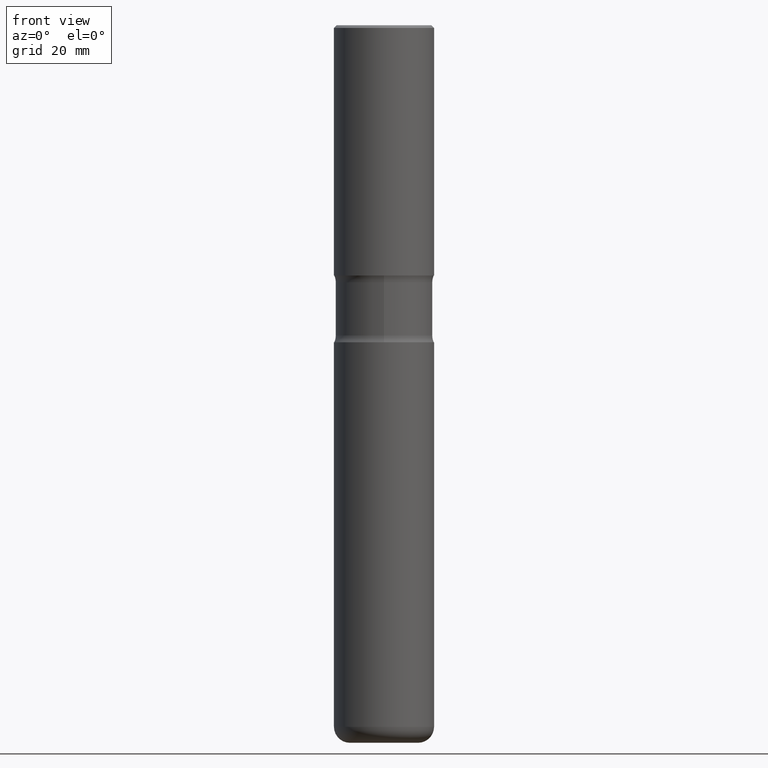
[diagram: clean part render]
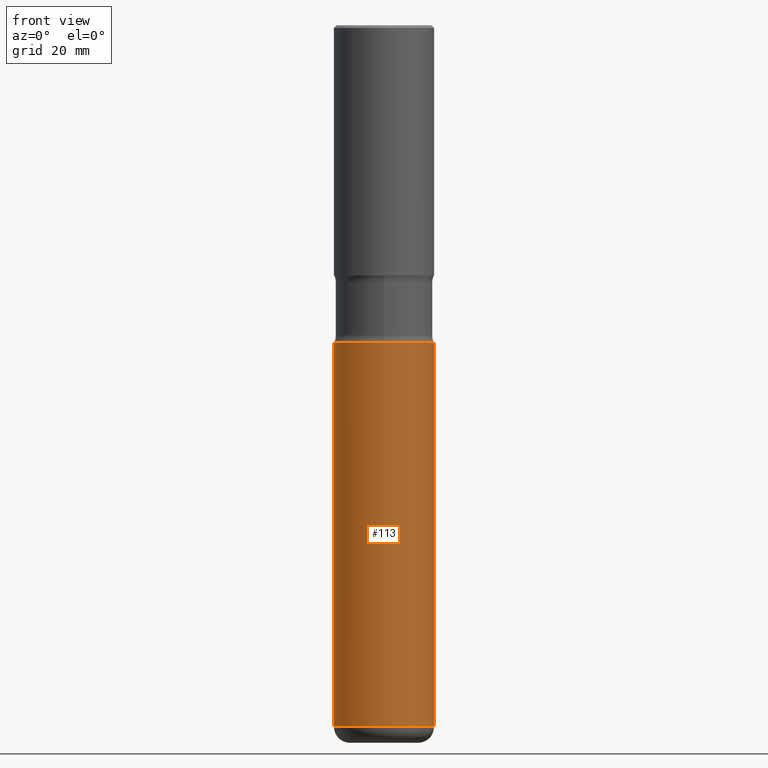
[diagram: same view with one face highlighted and labeled with its STEP entity id]
A machine part, front view. The second image highlights one B-rep face of the part: STEP entity #113.
In plain terms, the highlighted cylindrical surface (partial cylindrical patch) has radius 9.525 mm, axis along (-0, 0, 1).
Its self-contained STEP definition (entity closure, byte-faithful):
#11 = DIRECTION ( 'NONE',  ( 1.000000000000000000, -6.982962677686265922E-15, 0.000000000000000000 ) ) ;
#21 = CARTESIAN_POINT ( 'NONE',  ( -0.3750000000000004441, -1.568319917652035099E-14, -5.254999999999999893 ) ) ;
#40 = CYLINDRICAL_SURFACE ( 'NONE', #141, 0.3750000000000003886 ) ;
#45 = VERTEX_POINT ( 'NONE', #455 ) ;
#50 = DIRECTION ( 'NONE',  ( -2.445468806185136597E-29, 3.491481338843145583E-15, 1.000000000000000000 ) ) ;
#68 = EDGE_LOOP ( 'NONE', ( #489, #265, #447, #208 ) ) ;
#76 = CARTESIAN_POINT ( 'NONE',  ( 0.000000000000000000, 0.000000000000000000, 0.000000000000000000 ) ) ;
#87 = VECTOR ( 'NONE', #222, 39.37007874015748143 ) ;
#89 = CARTESIAN_POINT ( 'NONE',  ( 5.807988414689700538E-29, -8.292268179752471696E-15, -2.375000000000000000 ) ) ;
#90 = CARTESIAN_POINT ( 'NONE',  ( 0.3750000000000003886, -2.618611004132352383E-15, 1.828566290923477884E-29 ) ) ;
#112 = VERTEX_POINT ( 'NONE', #511 ) ;
#113 = ADVANCED_FACE ( 'NONE', ( #377 ), #40, .T. ) ;
#119 = VERTEX_POINT ( 'NONE', #127 ) ;
#127 = CARTESIAN_POINT ( 'NONE',  ( 0.3750000000000004441, -2.096634543975308301E-14, -5.254999999999999893 ) ) ;
#141 = AXIS2_PLACEMENT_3D ( 'NONE', #76, #500, #219 ) ;
#189 = LINE ( 'NONE', #90, #87 ) ;
#200 = EDGE_CURVE ( 'NONE', #119, #112, #189, .T. ) ;
#208 = ORIENTED_EDGE ( 'NONE', *, *, #258, .F. ) ;
#219 = DIRECTION ( 'NONE',  ( 1.000000000000000000, -6.982962677686265922E-15, 4.876176775795935793E-29 ) ) ;
#222 = DIRECTION ( 'NONE',  ( -2.445468806185136877E-29, 3.491481338843145188E-15, 1.000000000000000000 ) ) ;
#256 = EDGE_CURVE ( 'NONE', #412, #119, #393, .T. ) ;
#258 = EDGE_CURVE ( 'NONE', #45, #112, #405, .T. ) ;
#260 = AXIS2_PLACEMENT_3D ( 'NONE', #89, #50, #11 ) ;
#265 = ORIENTED_EDGE ( 'NONE', *, *, #256, .T. ) ;
#266 = DIRECTION ( 'NONE',  ( 1.000000000000000000, -6.982962677686263555E-15, 0.000000000000000000 ) ) ;
#294 = DIRECTION ( 'NONE',  ( -2.445468806185136597E-29, 3.491481338843145583E-15, 1.000000000000000000 ) ) ;
#318 = DIRECTION ( 'NONE',  ( -2.445468806185136877E-29, 3.491481338843145188E-15, 1.000000000000000000 ) ) ;
#343 = VECTOR ( 'NONE', #318, 39.37007874015748143 ) ;
#345 = CARTESIAN_POINT ( 'NONE',  ( 1.285093857650289066E-28, -1.834773443562072984E-14, -5.254999999999999893 ) ) ;
#376 = CARTESIAN_POINT ( 'NONE',  ( -0.3750000000000003886, 2.664535259100378458E-15, -1.844600658845591560E-29 ) ) ;
#377 = FACE_OUTER_BOUND ( 'NONE', #68, .T. ) ;
#393 = CIRCLE ( 'NONE', #535, 0.3750000000000004996 ) ;
#405 = CIRCLE ( 'NONE', #260, 0.3750000000000002776 ) ;
#412 = VERTEX_POINT ( 'NONE', #21 ) ;
#447 = ORIENTED_EDGE ( 'NONE', *, *, #200, .T. ) ;
#454 = LINE ( 'NONE', #376, #343 ) ;
#455 = CARTESIAN_POINT ( 'NONE',  ( -0.3750000000000002776, -1.065546604858622349E-14, -2.375000000000000000 ) ) ;
#476 = EDGE_CURVE ( 'NONE', #412, #45, #454, .T. ) ;
#489 = ORIENTED_EDGE ( 'NONE', *, *, #476, .F. ) ;
#500 = DIRECTION ( 'NONE',  ( -2.445468806185136597E-29, 3.491481338843145583E-15, 1.000000000000000000 ) ) ;
#511 = CARTESIAN_POINT ( 'NONE',  ( 0.3750000000000002776, -1.091087918388482329E-14, -2.375000000000000000 ) ) ;
#535 = AXIS2_PLACEMENT_3D ( 'NONE', #345, #294, #266 ) ;